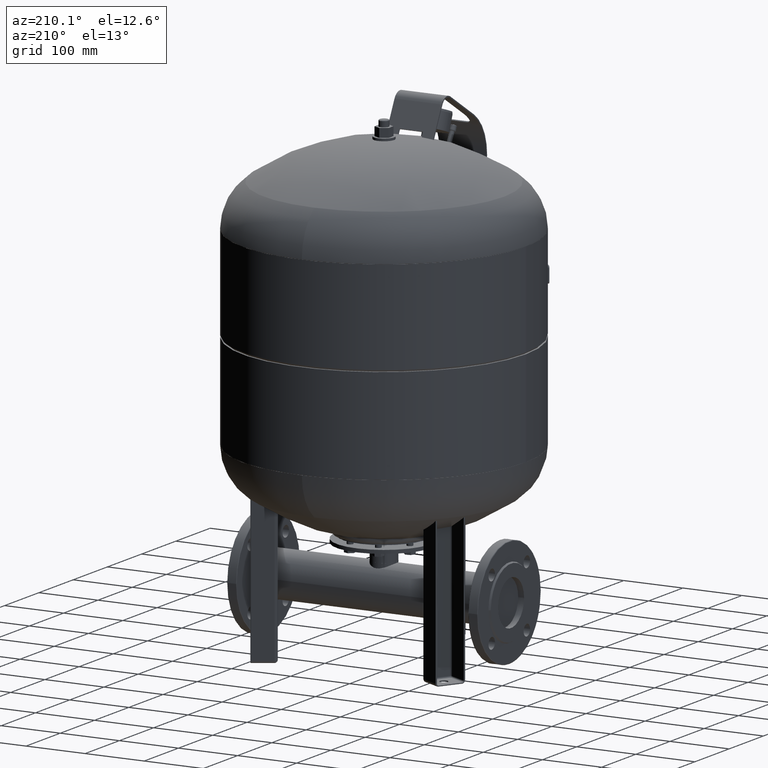
[diagram: clean part render]
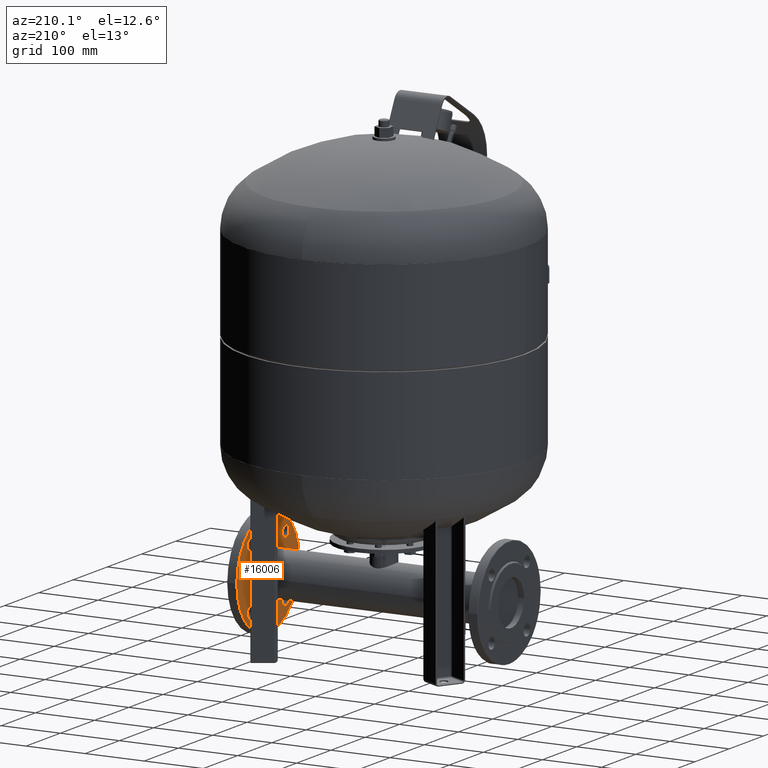
[diagram: same view with one face highlighted and labeled with its STEP entity id]
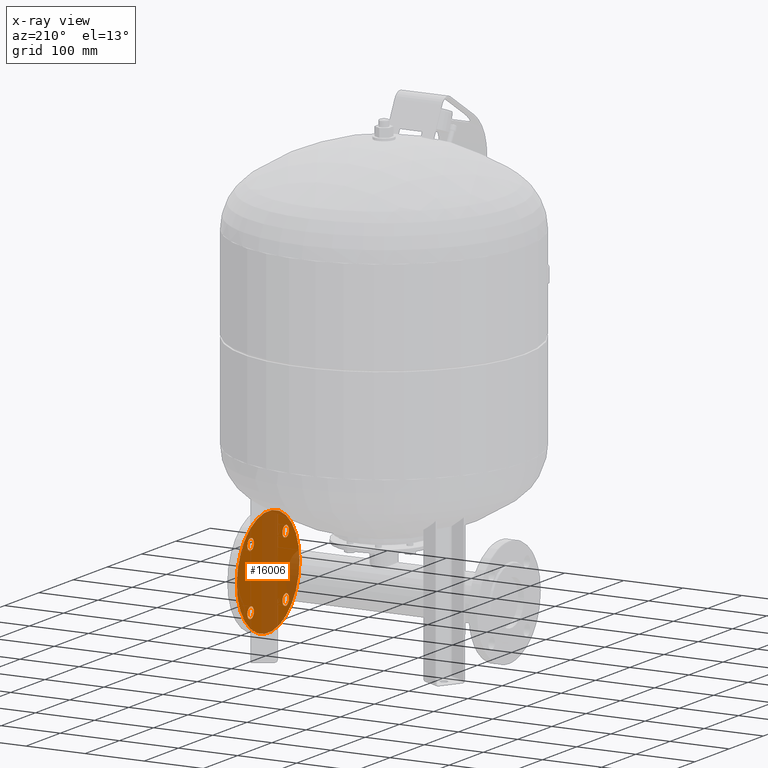
[diagram: x-ray of the same camera — body ghosted, the highlighted face saturated]
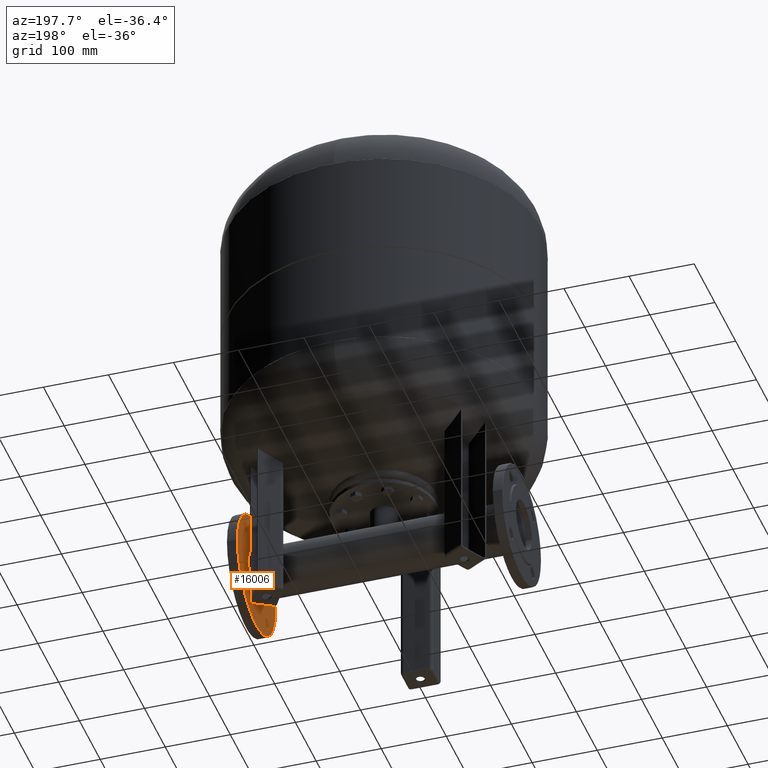
[diagram: same view with one face highlighted and labeled with its STEP entity id]
A machine part, auxiliary view. The second image highlights one B-rep face of the part: STEP entity #16006.
The next image is the same camera in x-ray: the body ghosted, the highlighted face saturated — about 43% of this face is hidden behind the body in this view.
A second angle (auxiliary view) of the same face is appended — the face is thin or edge-on in the first view.
In plain terms, the highlighted face is a freeform B-spline surface patch.
Its self-contained STEP definition (entity closure, byte-faithful):
#15418=CARTESIAN_POINT('',(196.000000000000030,-60.765241636024662,161.265241636024710));
#15419=VERTEX_POINT('',#15418);
#15428=CARTESIAN_POINT('',(196.000000000000030,-41.765241636024662,161.265241636024710));
#15429=VERTEX_POINT('',#15428);
#15430=CARTESIAN_POINT('',(196.000000000000030,-51.265241636024662,161.265241636024710));
#15431=DIRECTION('',(1.0,0.0,0.0));
#15432=DIRECTION('',(0.0,-1.0,0.0));
#15433=AXIS2_PLACEMENT_3D('',#15430,#15431,#15432);
#15434=CIRCLE('',#15433,9.500000000000000);
#15435=EDGE_CURVE('',#15429,#15419,#15434,.T.);
#15460=CARTESIAN_POINT('',(196.0,-60.765241636024754,58.734758363975367));
#15461=VERTEX_POINT('',#15460);
#15470=CARTESIAN_POINT('',(196.0,-41.765241636024754,58.734758363975367));
#15471=VERTEX_POINT('',#15470);
#15472=CARTESIAN_POINT('',(196.0,-51.265241636024754,58.734758363975367));
#15473=DIRECTION('',(1.0,0.0,0.0));
#15474=DIRECTION('',(0.0,-1.0,0.0));
#15475=AXIS2_PLACEMENT_3D('',#15472,#15473,#15474);
#15476=CIRCLE('',#15475,9.500000000000000);
#15477=EDGE_CURVE('',#15471,#15461,#15476,.T.);
#15502=CARTESIAN_POINT('',(195.999999999999970,41.765241636024690,58.734758363975303));
#15503=VERTEX_POINT('',#15502);
#15512=CARTESIAN_POINT('',(195.999999999999970,60.765241636024690,58.734758363975303));
#15513=VERTEX_POINT('',#15512);
#15514=CARTESIAN_POINT('',(195.999999999999970,51.265241636024690,58.734758363975303));
#15515=DIRECTION('',(1.0,0.0,0.0));
#15516=DIRECTION('',(0.0,-1.0,0.0));
#15517=AXIS2_PLACEMENT_3D('',#15514,#15515,#15516);
#15518=CIRCLE('',#15517,9.500000000000000);
#15519=EDGE_CURVE('',#15513,#15503,#15518,.T.);
#15544=CARTESIAN_POINT('',(196.0,41.765241636024712,161.265241636024680));
#15545=VERTEX_POINT('',#15544);
#15554=CARTESIAN_POINT('',(196.0,60.765241636024712,161.265241636024680));
#15555=VERTEX_POINT('',#15554);
#15556=CARTESIAN_POINT('',(196.0,51.265241636024712,161.265241636024680));
#15557=DIRECTION('',(1.0,0.0,0.0));
#15558=DIRECTION('',(0.0,-1.0,0.0));
#15559=AXIS2_PLACEMENT_3D('',#15556,#15557,#15558);
#15560=CIRCLE('',#15559,9.500000000000000);
#15561=EDGE_CURVE('',#15555,#15545,#15560,.T.);
#15662=CARTESIAN_POINT('',(196.000000000000030,-91.500000000000000,110.0));
#15663=VERTEX_POINT('',#15662);
#15672=CARTESIAN_POINT('',(195.999999999999970,91.500000000000000,110.000000000000030));
#15673=VERTEX_POINT('',#15672);
#15681=CARTESIAN_POINT('',(196.0,-3.490128E-015,110.0));
#15682=DIRECTION('',(1.0,0.0,0.0));
#15683=DIRECTION('',(0.0,1.0,0.0));
#15684=AXIS2_PLACEMENT_3D('',#15681,#15682,#15683);
#15685=CIRCLE('',#15684,91.500000000000000);
#15686=EDGE_CURVE('',#15673,#15663,#15685,.T.);
#15763=CARTESIAN_POINT('',(196.0,-3.490128E-015,110.0));
#15764=DIRECTION('',(1.0,0.0,0.0));
#15765=DIRECTION('',(0.0,1.0,0.0));
#15766=AXIS2_PLACEMENT_3D('',#15763,#15764,#15765);
#15767=CIRCLE('',#15766,91.500000000000000);
#15768=EDGE_CURVE('',#15663,#15673,#15767,.T.);
#15885=CARTESIAN_POINT('',(196.0,51.265241636024712,161.265241636024680));
#15886=DIRECTION('',(1.0,0.0,0.0));
#15887=DIRECTION('',(0.0,-1.0,0.0));
#15888=AXIS2_PLACEMENT_3D('',#15885,#15886,#15887);
#15889=CIRCLE('',#15888,9.500000000000000);
#15890=EDGE_CURVE('',#15545,#15555,#15889,.T.);
#15903=CARTESIAN_POINT('',(195.999999999999970,51.265241636024690,58.734758363975303));
#15904=DIRECTION('',(1.0,0.0,0.0));
#15905=DIRECTION('',(0.0,-1.0,0.0));
#15906=AXIS2_PLACEMENT_3D('',#15903,#15904,#15905);
#15907=CIRCLE('',#15906,9.500000000000000);
#15908=EDGE_CURVE('',#15503,#15513,#15907,.T.);
#15921=CARTESIAN_POINT('',(196.0,-51.265241636024754,58.734758363975367));
#15922=DIRECTION('',(1.0,0.0,0.0));
#15923=DIRECTION('',(0.0,-1.0,0.0));
#15924=AXIS2_PLACEMENT_3D('',#15921,#15922,#15923);
#15925=CIRCLE('',#15924,9.500000000000000);
#15926=EDGE_CURVE('',#15461,#15471,#15925,.T.);
#15939=CARTESIAN_POINT('',(196.000000000000030,-51.265241636024662,161.265241636024710));
#15940=DIRECTION('',(1.0,0.0,0.0));
#15941=DIRECTION('',(0.0,-1.0,0.0));
#15942=AXIS2_PLACEMENT_3D('',#15939,#15940,#15941);
#15943=CIRCLE('',#15942,9.500000000000000);
#15944=EDGE_CURVE('',#15419,#15429,#15943,.T.);
#15981=CARTESIAN_POINT('',(196.0,91.500000000000000,18.500000000000000));
#15982=CARTESIAN_POINT('',(196.0,91.500000000000000,201.500000000000000));
#15983=CARTESIAN_POINT('',(196.0,-91.500000000000000,18.500000000000000));
#15984=CARTESIAN_POINT('',(196.0,-91.500000000000000,201.500000000000000));
#15985=B_SPLINE_SURFACE_WITH_KNOTS('',1,1,((#15981,#15983),(#15982,#15984)),.UNSPECIFIED.,.F.,.F.,.U.,(2,2),(2,2),(0.0,183.0),(0.0,183.0),.UNSPECIFIED.);
#15986=ORIENTED_EDGE('',*,*,#15768,.F.);
#15987=ORIENTED_EDGE('',*,*,#15686,.F.);
#15988=EDGE_LOOP('',(#15986,#15987));
#15989=FACE_OUTER_BOUND('',#15988,.T.);
#15990=ORIENTED_EDGE('',*,*,#15890,.T.);
#15991=ORIENTED_EDGE('',*,*,#15561,.T.);
#15992=EDGE_LOOP('',(#15990,#15991));
#15993=FACE_BOUND('',#15992,.T.);
#15994=ORIENTED_EDGE('',*,*,#15908,.T.);
#15995=ORIENTED_EDGE('',*,*,#15519,.T.);
#15996=EDGE_LOOP('',(#15994,#15995));
#15997=FACE_BOUND('',#15996,.T.);
#15998=ORIENTED_EDGE('',*,*,#15926,.T.);
#15999=ORIENTED_EDGE('',*,*,#15477,.T.);
#16000=EDGE_LOOP('',(#15998,#15999));
#16001=FACE_BOUND('',#16000,.T.);
#16002=ORIENTED_EDGE('',*,*,#15944,.T.);
#16003=ORIENTED_EDGE('',*,*,#15435,.T.);
#16004=EDGE_LOOP('',(#16002,#16003));
#16005=FACE_BOUND('',#16004,.T.);
#16006=ADVANCED_FACE('',(#15989,#15993,#15997,#16001,#16005),#15985,.F.);